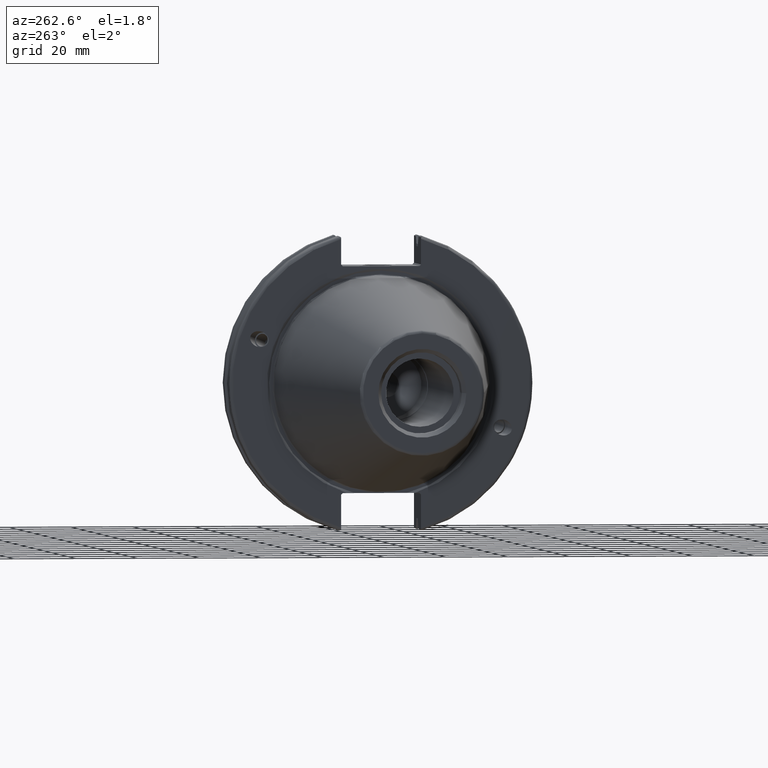
[diagram: clean part render]
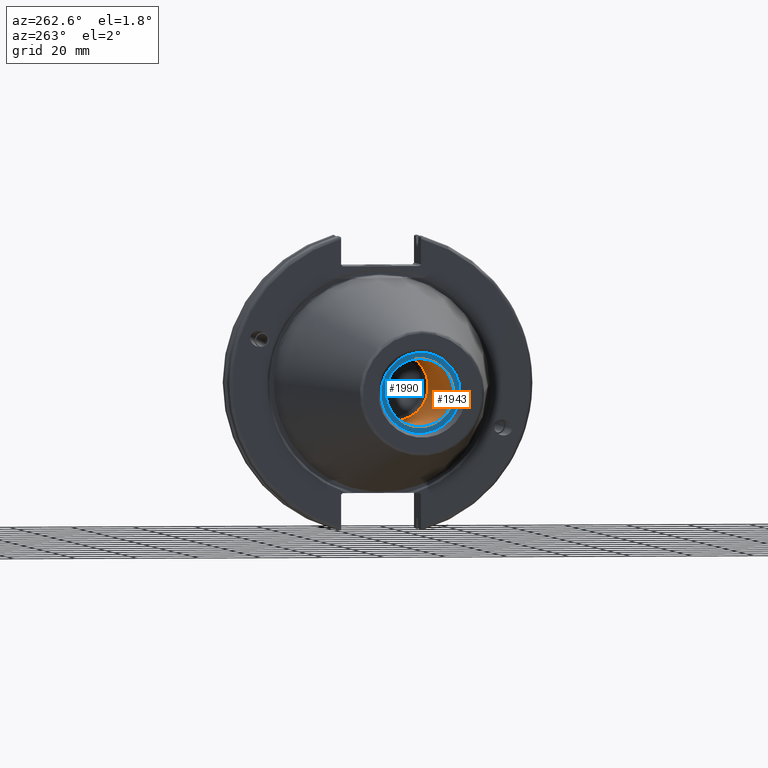
[diagram: same view with the hole feature highlighted: cylindrical wall and planar end face, labeled with their STEP entity ids]
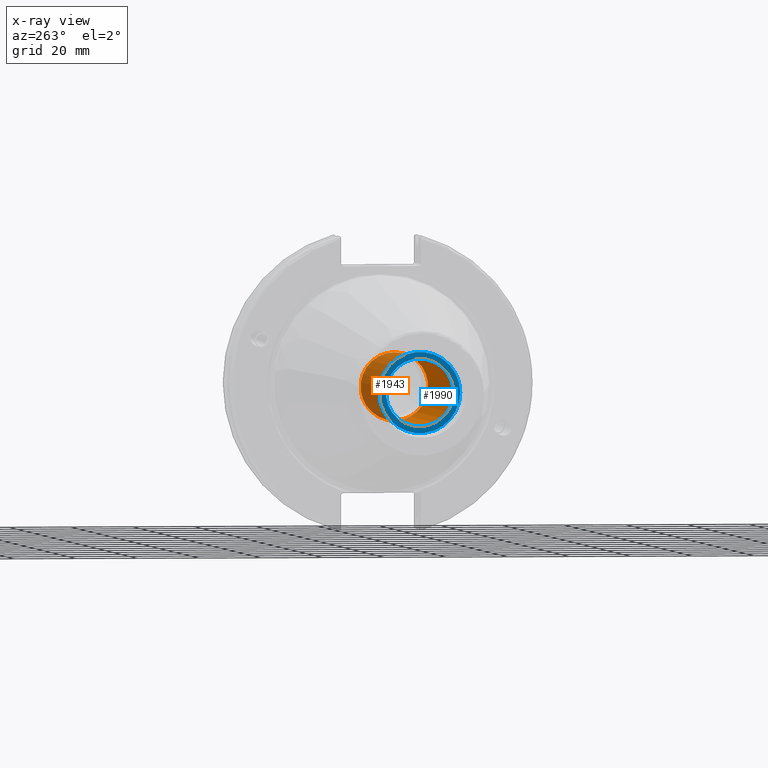
[diagram: x-ray of the same camera — body ghosted, the hole faces saturated]
A machine part, auxiliary view. The highlighted faces form one hole feature of diameter 21.971 mm: the cylindrical wall (entity #1943, orange) and its adjacent planar end face (entity #1990, blue) — they share a circular edge in the B-rep.
The next image is the same camera in x-ray (body ghosted, the hole faces saturated) — the bore reads through the body.
Wall:
#207=LINE('',#3616,#313);
#313=VECTOR('',#2650,10.9855);
#386=CYLINDRICAL_SURFACE('',#2179,10.9855);
#457=FACE_OUTER_BOUND('',#579,.T.);
#579=EDGE_LOOP('',(#1603,#1604,#1605,#1606));
#734=CIRCLE('',#2178,10.9855);
#735=CIRCLE('',#2180,10.9855);
#904=VERTEX_POINT('',#3610);
#905=VERTEX_POINT('',#3614);
#1155=EDGE_CURVE('',#904,#904,#734,.T.);
#1157=EDGE_CURVE('',#905,#905,#735,.T.);
#1158=EDGE_CURVE('',#905,#904,#207,.T.);
#1603=ORIENTED_EDGE('',*,*,#1157,.F.);
#1604=ORIENTED_EDGE('',*,*,#1158,.T.);
#1605=ORIENTED_EDGE('',*,*,#1155,.F.);
#1606=ORIENTED_EDGE('',*,*,#1158,.F.);
#1943=ADVANCED_FACE('',(#457),#386,.F.);
#2178=AXIS2_PLACEMENT_3D('',#3611,#2643,#2644);
#2179=AXIS2_PLACEMENT_3D('',#3613,#2646,#2647);
#2180=AXIS2_PLACEMENT_3D('',#3615,#2648,#2649);
#2643=DIRECTION('center_axis',(-1.,0.,0.));
#2644=DIRECTION('ref_axis',(0.,0.,1.));
#2646=DIRECTION('center_axis',(-1.,0.,0.));
#2647=DIRECTION('ref_axis',(0.,0.,1.));
#2648=DIRECTION('center_axis',(1.,0.,0.));
#2649=DIRECTION('ref_axis',(0.,0.,1.));
#2650=DIRECTION('',(1.,0.,0.));
#3610=CARTESIAN_POINT('',(-31.6,-1.34533574120333E-15,-10.9855));
#3611=CARTESIAN_POINT('Origin',(-31.6,0.,0.));
#3613=CARTESIAN_POINT('Origin',(-66.6,0.,0.));
#3614=CARTESIAN_POINT('',(-95.25,1.34533574120333E-15,-10.9855));
#3615=CARTESIAN_POINT('Origin',(-95.25,0.,0.));
#3616=CARTESIAN_POINT('',(-66.6,-1.34533574120333E-15,-10.9855));
End face:
#92=FACE_BOUND('',#632,.T.);
#130=PLANE('',#2257);
#504=FACE_OUTER_BOUND('',#631,.T.);
#631=EDGE_LOOP('',(#1857));
#632=EDGE_LOOP('',(#1858));
#735=CIRCLE('',#2180,10.9855);
#766=CIRCLE('',#2258,13.1);
#905=VERTEX_POINT('',#3614);
#965=VERTEX_POINT('',#3943);
#1157=EDGE_CURVE('',#905,#905,#735,.T.);
#1263=EDGE_CURVE('',#965,#965,#766,.T.);
#1857=ORIENTED_EDGE('',*,*,#1263,.F.);
#1858=ORIENTED_EDGE('',*,*,#1157,.T.);
#1990=ADVANCED_FACE('',(#504,#92),#130,.T.);
#2180=AXIS2_PLACEMENT_3D('',#3615,#2648,#2649);
#2257=AXIS2_PLACEMENT_3D('',#3942,#2851,#2852);
#2258=AXIS2_PLACEMENT_3D('',#3944,#2853,#2854);
#2648=DIRECTION('center_axis',(1.,0.,0.));
#2649=DIRECTION('ref_axis',(0.,0.,1.));
#2851=DIRECTION('center_axis',(-1.,0.,0.));
#2852=DIRECTION('ref_axis',(0.,0.,1.));
#2853=DIRECTION('center_axis',(1.,0.,0.));
#2854=DIRECTION('ref_axis',(0.,0.,-1.));
#3614=CARTESIAN_POINT('',(-95.25,1.34533574120333E-15,-10.9855));
#3615=CARTESIAN_POINT('Origin',(-95.25,0.,0.));
#3942=CARTESIAN_POINT('Origin',(-95.25,13.1,0.));
#3943=CARTESIAN_POINT('',(-95.25,-13.1,-1.60428730688303E-15));
#3944=CARTESIAN_POINT('Origin',(-95.25,0.,0.));